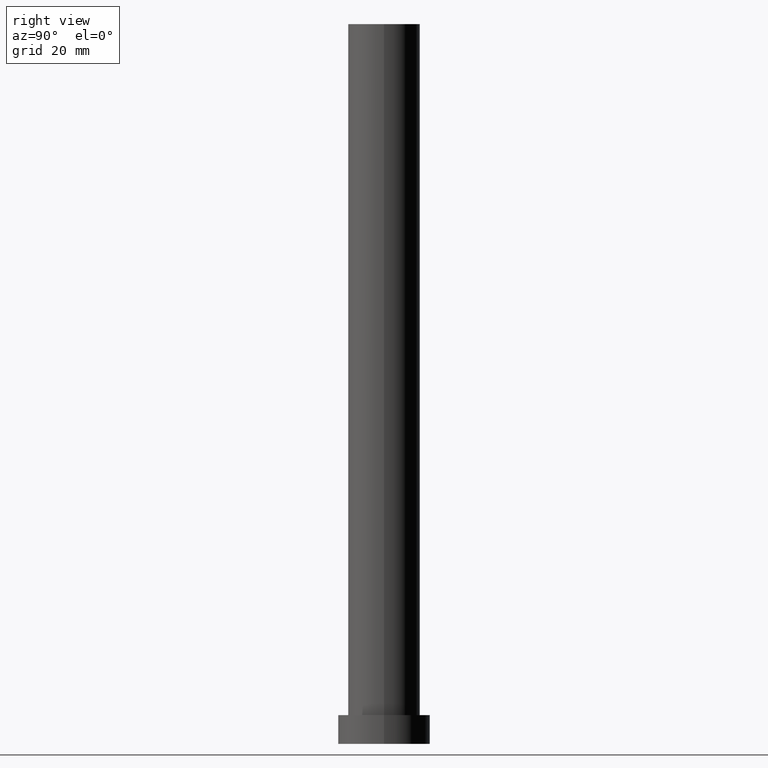
[diagram: clean part render]
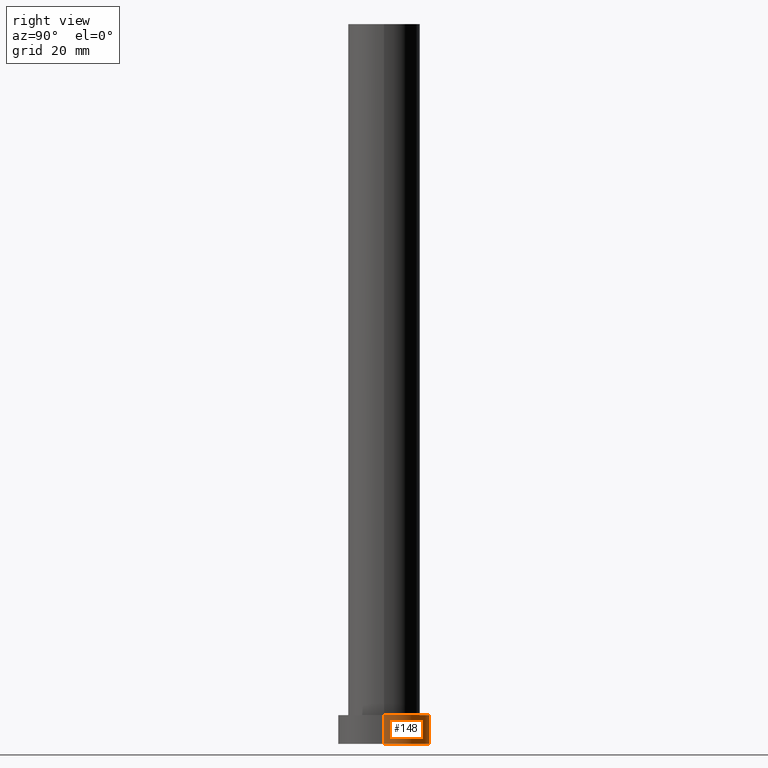
[diagram: same view with one face highlighted and labeled with its STEP entity id]
A machine part, right view. The second image highlights one B-rep face of the part: STEP entity #148.
In plain terms, the highlighted cylindrical surface (partial cylindrical patch) has radius 16 mm, axis along (-0, -0, -1).
Its self-contained STEP definition (entity closure, byte-faithful):
#1 = DIRECTION ( 'NONE',  ( -0.000000000000000000, -0.000000000000000000, -1.000000000000000000 ) ) ;
#6 = VERTEX_POINT ( 'NONE', #179 ) ;
#10 = DIRECTION ( 'NONE',  ( 0.000000000000000000, 0.000000000000000000, 1.000000000000000000 ) ) ;
#18 = DIRECTION ( 'NONE',  ( -0.000000000000000000, -0.000000000000000000, -1.000000000000000000 ) ) ;
#21 = ORIENTED_EDGE ( 'NONE', *, *, #99, .F. ) ;
#22 = VERTEX_POINT ( 'NONE', #104 ) ;
#23 = ORIENTED_EDGE ( 'NONE', *, *, #109, .T. ) ;
#27 = EDGE_CURVE ( 'NONE', #22, #6, #154, .T. ) ;
#36 = FACE_OUTER_BOUND ( 'NONE', #95, .T. ) ;
#37 = DIRECTION ( 'NONE',  ( 1.000000000000000000, 0.000000000000000000, 0.000000000000000000 ) ) ;
#40 = DIRECTION ( 'NONE',  ( 0.000000000000000000, 0.000000000000000000, 1.000000000000000000 ) ) ;
#46 = VECTOR ( 'NONE', #181, 1000.000000000000000 ) ;
#58 = LINE ( 'NONE', #255, #141 ) ;
#85 = CARTESIAN_POINT ( 'NONE',  ( 16.00000000000000000, 1.959434878635765131E-15, 10.00000000000000000 ) ) ;
#87 = DIRECTION ( 'NONE',  ( 1.000000000000000000, 0.000000000000000000, 0.000000000000000000 ) ) ;
#95 = EDGE_LOOP ( 'NONE', ( #190, #178, #23, #21 ) ) ;
#99 = EDGE_CURVE ( 'NONE', #6, #195, #58, .T. ) ;
#104 = CARTESIAN_POINT ( 'NONE',  ( 16.00000000000000000, 1.959434878635765131E-15, 10.00000000000000000 ) ) ;
#108 = CARTESIAN_POINT ( 'NONE',  ( 0.000000000000000000, 0.000000000000000000, 10.00000000000000000 ) ) ;
#109 = EDGE_CURVE ( 'NONE', #240, #195, #150, .T. ) ;
#118 = LINE ( 'NONE', #85, #46 ) ;
#129 = AXIS2_PLACEMENT_3D ( 'NONE', #236, #40, #37 ) ;
#137 = CARTESIAN_POINT ( 'NONE',  ( 16.00000000000000000, 1.959434878635765131E-15, 0.000000000000000000 ) ) ;
#141 = VECTOR ( 'NONE', #18, 1000.000000000000000 ) ;
#146 = AXIS2_PLACEMENT_3D ( 'NONE', #183, #10, #87 ) ;
#148 = ADVANCED_FACE ( 'NONE', ( #36 ), #171, .T. ) ;
#150 = CIRCLE ( 'NONE', #129, 16.00000000000000000 ) ;
#153 = DIRECTION ( 'NONE',  ( -1.000000000000000000, 0.000000000000000000, 0.000000000000000000 ) ) ;
#154 = CIRCLE ( 'NONE', #146, 16.00000000000000000 ) ;
#171 = CYLINDRICAL_SURFACE ( 'NONE', #193, 16.00000000000000000 ) ;
#178 = ORIENTED_EDGE ( 'NONE', *, *, #214, .T. ) ;
#179 = CARTESIAN_POINT ( 'NONE',  ( -16.00000000000000000, 0.000000000000000000, 10.00000000000000000 ) ) ;
#181 = DIRECTION ( 'NONE',  ( -0.000000000000000000, -0.000000000000000000, -1.000000000000000000 ) ) ;
#183 = CARTESIAN_POINT ( 'NONE',  ( 0.000000000000000000, 0.000000000000000000, 10.00000000000000000 ) ) ;
#190 = ORIENTED_EDGE ( 'NONE', *, *, #27, .F. ) ;
#193 = AXIS2_PLACEMENT_3D ( 'NONE', #108, #1, #153 ) ;
#195 = VERTEX_POINT ( 'NONE', #199 ) ;
#199 = CARTESIAN_POINT ( 'NONE',  ( -16.00000000000000000, 0.000000000000000000, 0.000000000000000000 ) ) ;
#214 = EDGE_CURVE ( 'NONE', #22, #240, #118, .T. ) ;
#236 = CARTESIAN_POINT ( 'NONE',  ( 0.000000000000000000, 0.000000000000000000, 0.000000000000000000 ) ) ;
#240 = VERTEX_POINT ( 'NONE', #137 ) ;
#255 = CARTESIAN_POINT ( 'NONE',  ( -16.00000000000000000, 0.000000000000000000, 10.00000000000000000 ) ) ;